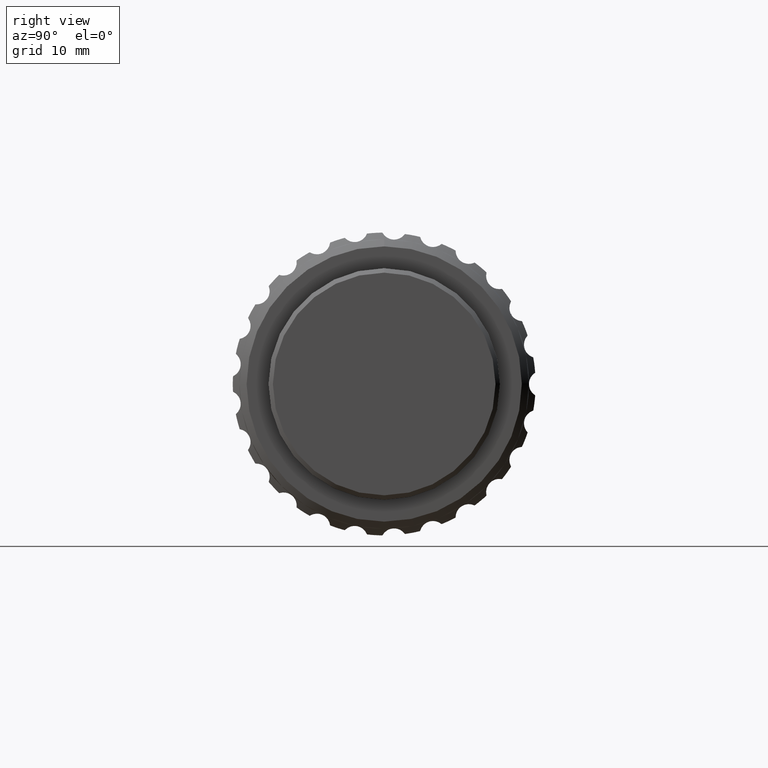
[diagram: clean part render]
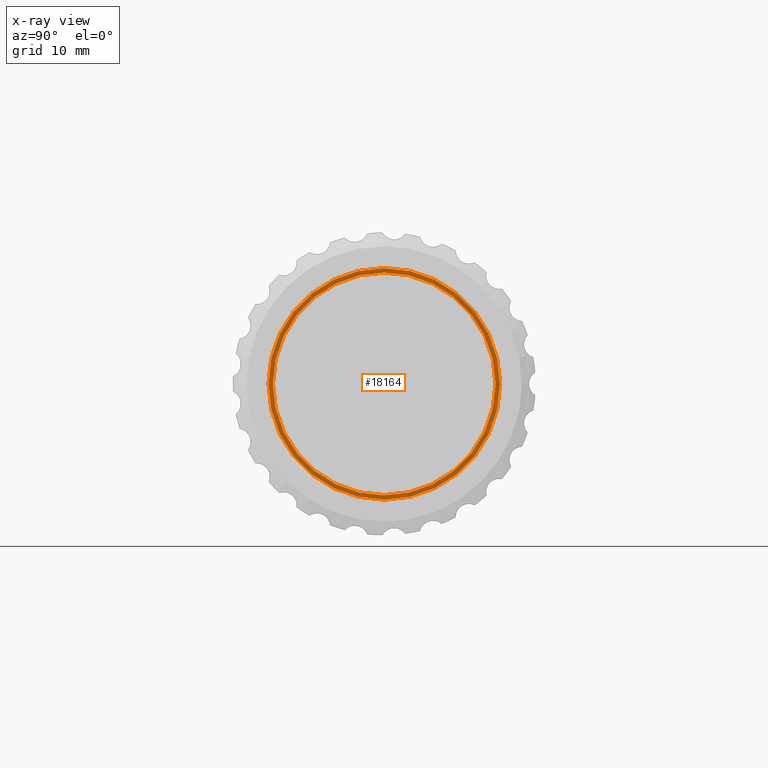
[diagram: x-ray — body ghosted, one internal face saturated and labeled with its STEP entity id]
A machine part, right view, then the same camera in x-ray: the body is ghosted and one INTERNAL B-rep face — a face not visible from any outside direction — is saturated and labeled: STEP entity #18164.
In plain terms, the highlighted planar face has unit normal (1, 0, 0).
Its self-contained STEP definition (entity closure, byte-faithful):
#321 = CARTESIAN_POINT ( 'NONE',  ( 95.99999999999998579, 0.000000000000000000, 0.000000000000000000 ) ) ;
#1533 = DIRECTION ( 'NONE',  ( 0.000000000000000000, 0.000000000000000000, 1.000000000000000000 ) ) ;
#2327 = CARTESIAN_POINT ( 'NONE',  ( 95.99999999999998579, 0.000000000000000000, 0.000000000000000000 ) ) ;
#2465 = EDGE_CURVE ( 'NONE', #24419, #18150, #24494, .T. ) ;
#2556 = DIRECTION ( 'NONE',  ( 0.000000000000000000, 0.000000000000000000, 1.000000000000000000 ) ) ;
#2698 = VERTEX_POINT ( 'NONE', #30635 ) ;
#3511 = DIRECTION ( 'NONE',  ( 0.000000000000000000, 0.000000000000000000, 1.000000000000000000 ) ) ;
#3704 = FACE_BOUND ( 'NONE', #23301, .T. ) ;
#4263 = DIRECTION ( 'NONE',  ( -1.000000000000000000, -0.000000000000000000, -0.000000000000000000 ) ) ;
#5071 = CARTESIAN_POINT ( 'NONE',  ( 95.99999999999998579, 0.000000000000000000, 12.99999999999998934 ) ) ;
#5083 = EDGE_CURVE ( 'NONE', #18150, #24419, #9108, .T. ) ;
#5091 = CIRCLE ( 'NONE', #6620, 12.99999999999998934 ) ;
#6620 = AXIS2_PLACEMENT_3D ( 'NONE', #13947, #28714, #1533 ) ;
#8327 = FACE_OUTER_BOUND ( 'NONE', #15827, .T. ) ;
#8650 = DIRECTION ( 'NONE',  ( 0.000000000000000000, 0.000000000000000000, -1.000000000000000000 ) ) ;
#9104 = ORIENTED_EDGE ( 'NONE', *, *, #5083, .F. ) ;
#9108 = CIRCLE ( 'NONE', #26865, 12.50000000000000178 ) ;
#10837 = CARTESIAN_POINT ( 'NONE',  ( 95.99999999999998579, 0.000000000000000000, 0.000000000000000000 ) ) ;
#10872 = CARTESIAN_POINT ( 'NONE',  ( 95.99999999999998579, 0.000000000000000000, -12.99999999999998934 ) ) ;
#13947 = CARTESIAN_POINT ( 'NONE',  ( 95.99999999999998579, 0.000000000000000000, 0.000000000000000000 ) ) ;
#13969 = DIRECTION ( 'NONE',  ( 0.000000000000000000, 0.000000000000000000, 1.000000000000000000 ) ) ;
#15361 = AXIS2_PLACEMENT_3D ( 'NONE', #10837, #25895, #3511 ) ;
#15774 = ORIENTED_EDGE ( 'NONE', *, *, #26143, .T. ) ;
#15827 = EDGE_LOOP ( 'NONE', ( #21672, #15774 ) ) ;
#17615 = ORIENTED_EDGE ( 'NONE', *, *, #2465, .F. ) ;
#17863 = CIRCLE ( 'NONE', #29063, 12.99999999999998934 ) ;
#18150 = VERTEX_POINT ( 'NONE', #25175 ) ;
#18164 = ADVANCED_FACE ( 'NONE', ( #3704, #8327 ), #20709, .F. ) ;
#18963 = AXIS2_PLACEMENT_3D ( 'NONE', #10872, #20547, #8650 ) ;
#20547 = DIRECTION ( 'NONE',  ( 1.000000000000000000, 0.000000000000000000, 0.000000000000000000 ) ) ;
#20670 = VERTEX_POINT ( 'NONE', #5071 ) ;
#20709 = PLANE ( 'NONE',  #18963 ) ;
#21672 = ORIENTED_EDGE ( 'NONE', *, *, #27805, .T. ) ;
#23301 = EDGE_LOOP ( 'NONE', ( #9104, #17615 ) ) ;
#24419 = VERTEX_POINT ( 'NONE', #30523 ) ;
#24494 = CIRCLE ( 'NONE', #15361, 12.50000000000000178 ) ;
#25175 = CARTESIAN_POINT ( 'NONE',  ( 95.99999999999998579, 0.000000000000000000, 12.50000000000000178 ) ) ;
#25895 = DIRECTION ( 'NONE',  ( -1.000000000000000000, -0.000000000000000000, -0.000000000000000000 ) ) ;
#26143 = EDGE_CURVE ( 'NONE', #2698, #20670, #5091, .T. ) ;
#26865 = AXIS2_PLACEMENT_3D ( 'NONE', #2327, #4263, #13969 ) ;
#26895 = DIRECTION ( 'NONE',  ( -1.000000000000000000, -0.000000000000000000, -0.000000000000000000 ) ) ;
#27805 = EDGE_CURVE ( 'NONE', #20670, #2698, #17863, .T. ) ;
#28714 = DIRECTION ( 'NONE',  ( -1.000000000000000000, -0.000000000000000000, -0.000000000000000000 ) ) ;
#29063 = AXIS2_PLACEMENT_3D ( 'NONE', #321, #26895, #2556 ) ;
#30523 = CARTESIAN_POINT ( 'NONE',  ( 95.99999999999998579, 1.530808498934191719E-15, -12.50000000000000178 ) ) ;
#30635 = CARTESIAN_POINT ( 'NONE',  ( 95.99999999999998579, 1.592040838891557715E-15, -12.99999999999998934 ) ) ;